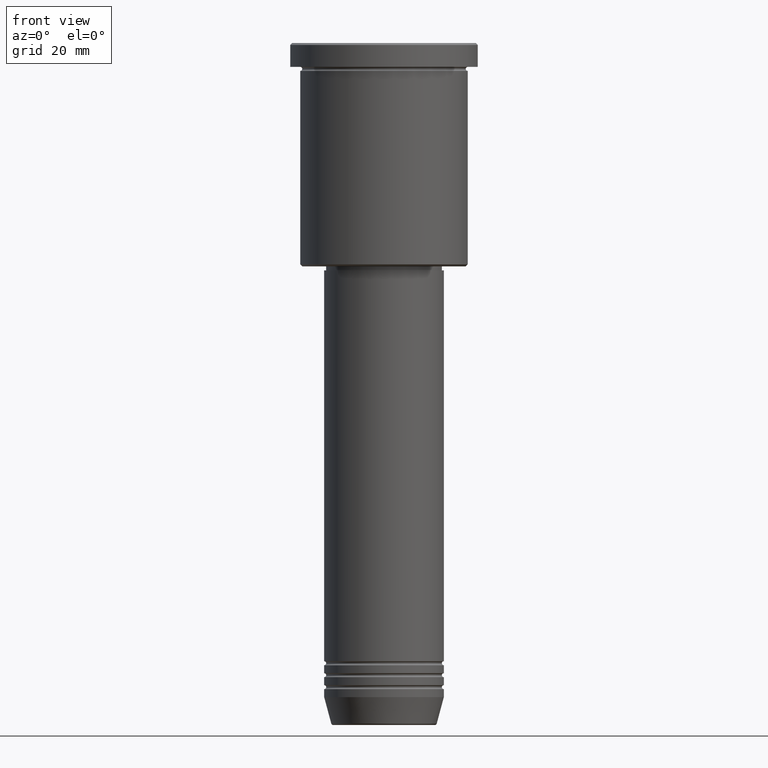
[diagram: clean part render]
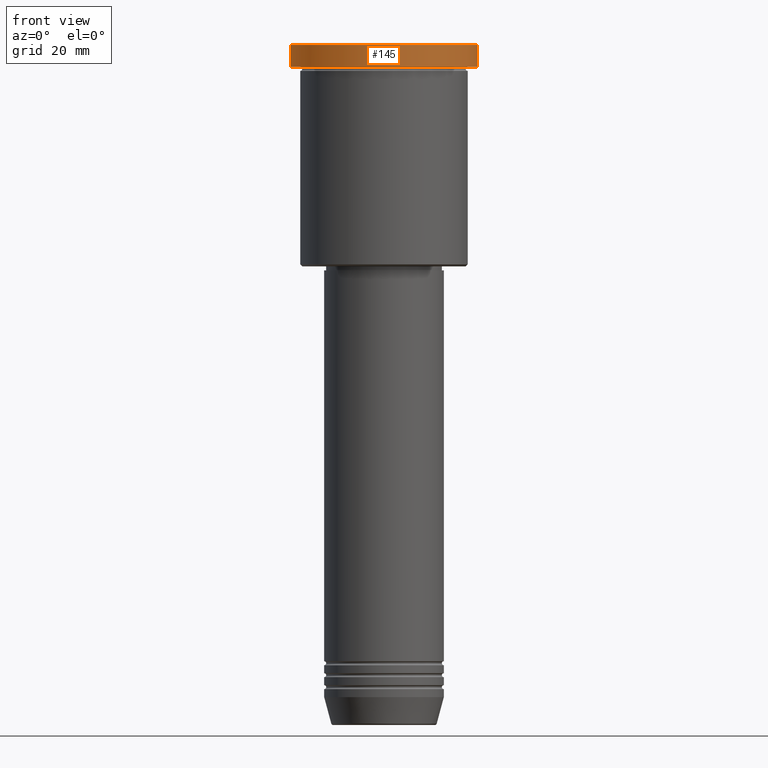
[diagram: same view with one face highlighted and labeled with its STEP entity id]
A machine part, front view. The second image highlights one B-rep face of the part: STEP entity #145.
In plain terms, the highlighted cylindrical surface (partial cylindrical patch) has radius 23.5 mm, axis along (-0, -0, 1).
Its self-contained STEP definition (entity closure, byte-faithful):
#28 = EDGE_CURVE ( 'NONE', #867, #502, #252, .T. ) ;
#44 = DIRECTION ( 'NONE',  ( 1.000000000000000000, 0.000000000000000000, 0.000000000000000000 ) ) ;
#68 = CIRCLE ( 'NONE', #813, 23.50000000000000000 ) ;
#79 = ORIENTED_EDGE ( 'NONE', *, *, #318, .T. ) ;
#145 = ADVANCED_FACE ( 'NONE', ( #967 ), #959, .T. ) ;
#147 = CARTESIAN_POINT ( 'NONE',  ( 0.000000000000000000, 0.000000000000000000, 0.000000000000000000 ) ) ;
#150 = DIRECTION ( 'NONE',  ( 1.000000000000000000, 0.000000000000000000, 0.000000000000000000 ) ) ;
#151 = VERTEX_POINT ( 'NONE', #411 ) ;
#178 = VECTOR ( 'NONE', #896, 1000.000000000000000 ) ;
#195 = CARTESIAN_POINT ( 'NONE',  ( -23.50000000000000000, 2.877919977996280320E-15, 0.000000000000000000 ) ) ;
#212 = DIRECTION ( 'NONE',  ( 0.000000000000000000, 0.000000000000000000, -1.000000000000000000 ) ) ;
#252 = CIRCLE ( 'NONE', #756, 23.50000000000000000 ) ;
#264 = ORIENTED_EDGE ( 'NONE', *, *, #432, .F. ) ;
#308 = DIRECTION ( 'NONE',  ( 1.000000000000000000, 0.000000000000000000, 0.000000000000000000 ) ) ;
#318 = EDGE_CURVE ( 'NONE', #502, #748, #900, .T. ) ;
#375 = CARTESIAN_POINT ( 'NONE',  ( 23.50000000000000000, 0.000000000000000000, -0.4999999999999726885 ) ) ;
#382 = DIRECTION ( 'NONE',  ( -0.000000000000000000, -0.000000000000000000, 1.000000000000000000 ) ) ;
#396 = EDGE_LOOP ( 'NONE', ( #264, #624, #79, #1166 ) ) ;
#411 = CARTESIAN_POINT ( 'NONE',  ( -23.50000000000000000, 2.877919977996280320E-15, -0.4999999999999726885 ) ) ;
#432 = EDGE_CURVE ( 'NONE', #867, #151, #738, .T. ) ;
#502 = VERTEX_POINT ( 'NONE', #1026 ) ;
#542 = AXIS2_PLACEMENT_3D ( 'NONE', #147, #866, #44 ) ;
#624 = ORIENTED_EDGE ( 'NONE', *, *, #28, .T. ) ;
#738 = LINE ( 'NONE', #195, #851 ) ;
#748 = VERTEX_POINT ( 'NONE', #375 ) ;
#756 = AXIS2_PLACEMENT_3D ( 'NONE', #863, #872, #150 ) ;
#813 = AXIS2_PLACEMENT_3D ( 'NONE', #941, #212, #308 ) ;
#816 = EDGE_CURVE ( 'NONE', #748, #151, #68, .T. ) ;
#818 = CARTESIAN_POINT ( 'NONE',  ( 23.50000000000000000, 0.000000000000000000, 0.000000000000000000 ) ) ;
#851 = VECTOR ( 'NONE', #382, 1000.000000000000000 ) ;
#863 = CARTESIAN_POINT ( 'NONE',  ( 0.000000000000000000, 0.000000000000000000, -5.999999999999994671 ) ) ;
#866 = DIRECTION ( 'NONE',  ( -0.000000000000000000, -0.000000000000000000, 1.000000000000000000 ) ) ;
#867 = VERTEX_POINT ( 'NONE', #936 ) ;
#872 = DIRECTION ( 'NONE',  ( -0.000000000000000000, -0.000000000000000000, 1.000000000000000000 ) ) ;
#896 = DIRECTION ( 'NONE',  ( -0.000000000000000000, -0.000000000000000000, 1.000000000000000000 ) ) ;
#900 = LINE ( 'NONE', #818, #178 ) ;
#936 = CARTESIAN_POINT ( 'NONE',  ( -23.50000000000000000, 2.877919977996280320E-15, -5.999999999999994671 ) ) ;
#941 = CARTESIAN_POINT ( 'NONE',  ( 0.000000000000000000, 0.000000000000000000, -0.4999999999999726885 ) ) ;
#959 = CYLINDRICAL_SURFACE ( 'NONE', #542, 23.50000000000000000 ) ;
#967 = FACE_OUTER_BOUND ( 'NONE', #396, .T. ) ;
#1026 = CARTESIAN_POINT ( 'NONE',  ( 23.50000000000000000, 0.000000000000000000, -5.999999999999994671 ) ) ;
#1166 = ORIENTED_EDGE ( 'NONE', *, *, #816, .T. ) ;